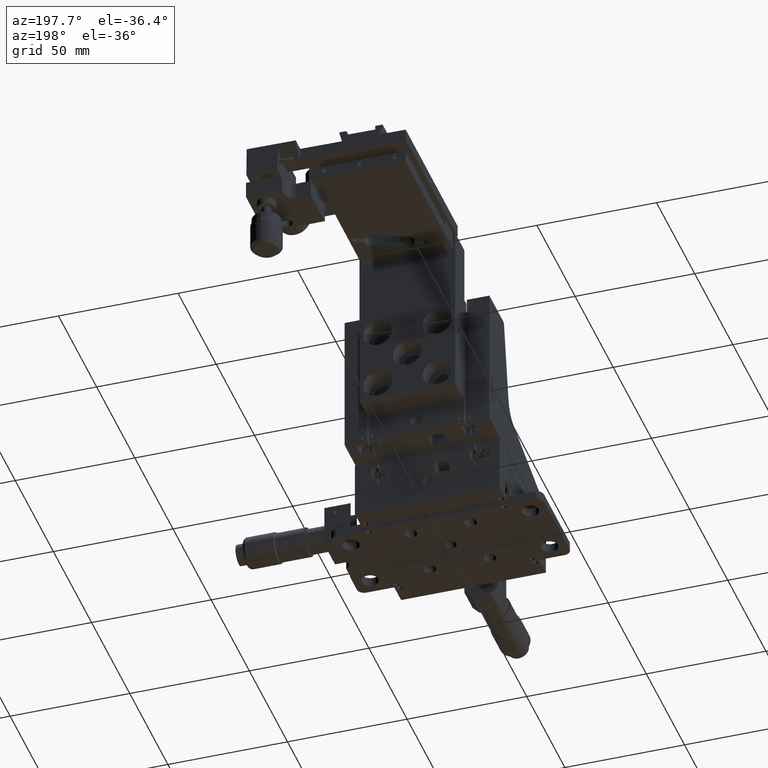
[diagram: clean part render]
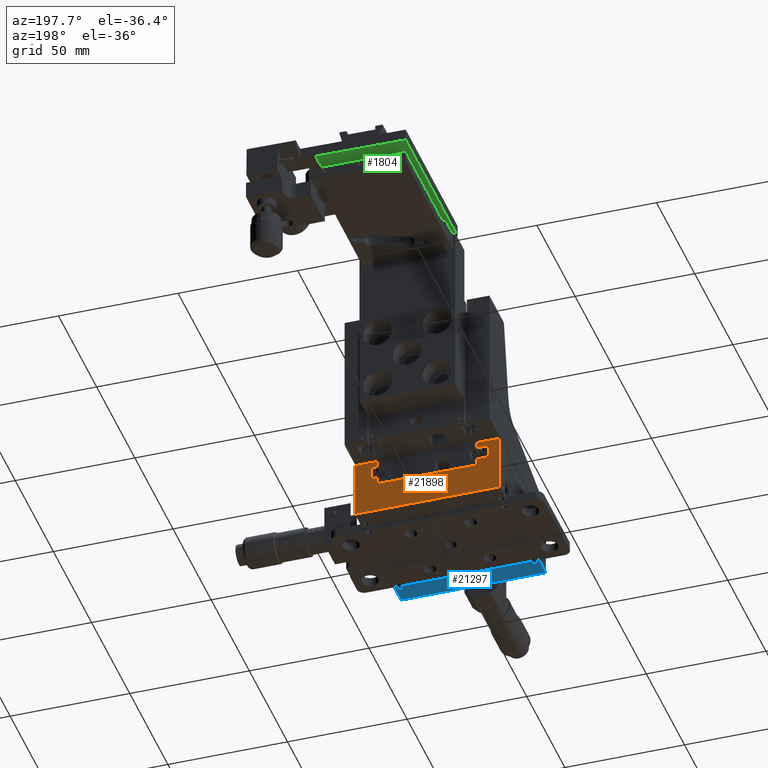
[diagram: same view with three faces highlighted in distinct colors, each labeled with its STEP entity id]
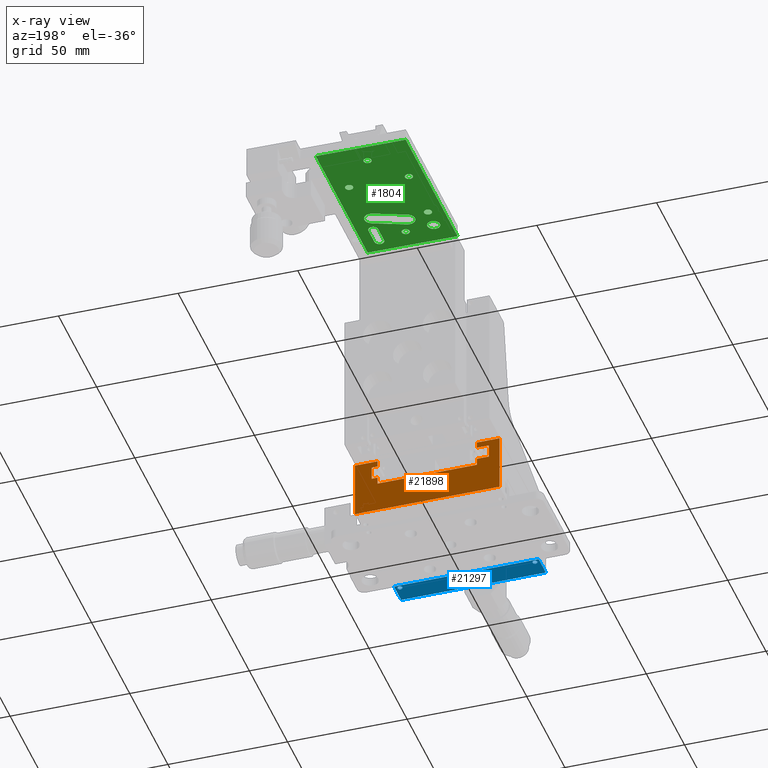
[diagram: x-ray of the same camera — body ghosted, the three highlighted faces saturated]
A machine part, auxiliary view with three faces highlighted in distinct colors.
The next image is the same camera in x-ray (body ghosted, the three faces saturated) — at least one of them is partly hidden behind the body in this view.
Their STEP definitions:

[orange] entity #21898 — the highlighted planar face has unit normal (-0, -1, 0).
#4605 = VECTOR ( 'NONE', #4657, 1000.000000000000000 ) ;
#4625 = CARTESIAN_POINT ( 'NONE',  ( -25.79999999999999700, 30.25000000000003600, 17.09999999999992700 ) ) ;
#4626 = LINE ( 'NONE', #4625, #4605 ) ;
#4657 = DIRECTION ( 'NONE',  ( 1.577021341797097800E-016, 2.602085213965194500E-015, 1.000000000000000000 ) ) ;
#4671 = CARTESIAN_POINT ( 'NONE',  ( -25.79999999999999700, 30.25000000000003600, 17.09999999999992700 ) ) ;
#4674 = CARTESIAN_POINT ( 'NONE',  ( -25.79999999999999700, 30.25000000000004600, 22.59999999999993000 ) ) ;
#4730 = CARTESIAN_POINT ( 'NONE',  ( -20.79999999999999700, 30.25000000000003600, 17.09999999999992700 ) ) ;
#4731 = LINE ( 'NONE', #4730, #4790 ) ;
#4775 = DIRECTION ( 'NONE',  ( -1.000000000000000000, 1.761832206359568800E-044, -4.584437533655909100E-059 ) ) ;
#4776 = VECTOR ( 'NONE', #4775, 1000.000000000000000 ) ;
#4777 = CARTESIAN_POINT ( 'NONE',  ( -20.79999999999999700, 30.25000000000003600, 17.09999999999992700 ) ) ;
#4778 = CARTESIAN_POINT ( 'NONE',  ( -20.79999999999999700, 30.25000000000003600, 17.09999999999992700 ) ) ;
#4785 = LINE ( 'NONE', #4777, #4776 ) ;
#4789 = DIRECTION ( 'NONE',  ( 0.0000000000000000000, 2.602085213965194500E-015, 1.000000000000000000 ) ) ;
#4790 = VECTOR ( 'NONE', #4789, 1000.000000000000000 ) ;
#4792 = CARTESIAN_POINT ( 'NONE',  ( 20.80000000000000400, 30.25000000000002800, 14.14999999999991700 ) ) ;
#4808 = CARTESIAN_POINT ( 'NONE',  ( 20.80000000000000400, 30.25000000000004600, 22.59999999999993000 ) ) ;
#4815 = DIRECTION ( 'NONE',  ( -1.000000000000000000, 3.255215125354182800E-031, 1.251002506714043500E-016 ) ) ;
#4816 = VECTOR ( 'NONE', #4815, 1000.000000000000000 ) ;
#4818 = CARTESIAN_POINT ( 'NONE',  ( -20.79999999999999700, 30.25000000000002800, 14.14999999999992200 ) ) ;
#4820 = CARTESIAN_POINT ( 'NONE',  ( -20.79999999999999700, 30.25000000000002800, 14.14999999999992200 ) ) ;
#4821 = LINE ( 'NONE', #4820, #4816 ) ;
#4887 = CARTESIAN_POINT ( 'NONE',  ( -30.24999999999999600, 30.25000000000005300, 25.14999999999992000 ) ) ;
#4921 = CARTESIAN_POINT ( 'NONE',  ( 20.80000000000000400, 30.25000000000003600, 17.09999999999992700 ) ) ;
#5023 = CARTESIAN_POINT ( 'NONE',  ( 23.20000000000000300, 30.25000000000003600, 17.09999999999992700 ) ) ;
#5024 = LINE ( 'NONE', #5023, #5069 ) ;
#5045 = CARTESIAN_POINT ( 'NONE',  ( 23.20000000000000300, 30.25000000000003600, 17.09999999999992700 ) ) ;
#5046 = CARTESIAN_POINT ( 'NONE',  ( 20.80000000000000400, 30.25000000000005300, 25.14999999999992000 ) ) ;
#5064 = DIRECTION ( 'NONE',  ( 0.0000000000000000000, -2.602085213965194500E-015, -1.000000000000000000 ) ) ;
#5065 = VECTOR ( 'NONE', #5064, 1000.000000000000000 ) ;
#5066 = CARTESIAN_POINT ( 'NONE',  ( 20.80000000000000400, 30.25000000000005300, 25.14999999999991700 ) ) ;
#5068 = DIRECTION ( 'NONE',  ( 0.0000000000000000000, -2.602085213965194500E-015, -1.000000000000000000 ) ) ;
#5069 = VECTOR ( 'NONE', #5068, 1000.000000000000000 ) ;
#5070 = LINE ( 'NONE', #5066, #5065 ) ;
#5075 = CARTESIAN_POINT ( 'NONE',  ( 20.80000000000000400, 30.25000000000003600, 17.09999999999992700 ) ) ;
#5076 = LINE ( 'NONE', #5075, #5130 ) ;
#5087 = CARTESIAN_POINT ( 'NONE',  ( 23.20000000000000300, 30.25000000000004600, 22.59999999999993000 ) ) ;
#5129 = DIRECTION ( 'NONE',  ( 0.0000000000000000000, -2.602085213965194500E-015, -1.000000000000000000 ) ) ;
#5130 = VECTOR ( 'NONE', #5129, 1000.000000000000000 ) ;
#5181 = DIRECTION ( 'NONE',  ( 1.000000000000000000, -1.761832206359568800E-044, 4.584437533655909100E-059 ) ) ;
#5182 = VECTOR ( 'NONE', #5181, 1000.000000000000000 ) ;
#5183 = CARTESIAN_POINT ( 'NONE',  ( 20.80000000000000400, 30.25000000000004600, 22.59999999999993000 ) ) ;
#5184 = LINE ( 'NONE', #5183, #5182 ) ;
#5201 = CARTESIAN_POINT ( 'NONE',  ( 30.25000000000000400, 30.25000000000005300, 25.14999999999992000 ) ) ;
#5234 = DIRECTION ( 'NONE',  ( -1.000000000000000000, 1.761832206359568800E-044, -4.584437533655909100E-059 ) ) ;
#5245 = VECTOR ( 'NONE', #5234, 1000.000000000000000 ) ;
#5246 = CARTESIAN_POINT ( 'NONE',  ( 30.25000000000000400, 30.25000000000005300, 25.14999999999992000 ) ) ;
#5247 = LINE ( 'NONE', #5246, #5245 ) ;
#5270 = DIRECTION ( 'NONE',  ( -1.000000000000000000, 1.761832206359568800E-044, -4.584437533655909100E-059 ) ) ;
#5271 = VECTOR ( 'NONE', #5270, 1000.000000000000000 ) ;
#5272 = CARTESIAN_POINT ( 'NONE',  ( 20.80000000000000400, 30.25000000000003600, 17.09999999999992700 ) ) ;
#5273 = LINE ( 'NONE', #5272, #5271 ) ;
#5314 = LINE ( 'NONE', #5379, #5378 ) ;
#5341 = CARTESIAN_POINT ( 'NONE',  ( -30.24999999999999600, 30.24999999999999300, 1.149999999999918400 ) ) ;
#5373 = CARTESIAN_POINT ( 'NONE',  ( 30.25000000000000400, 30.24999999999999300, 1.149999999999918400 ) ) ;
#5377 = DIRECTION ( 'NONE',  ( 0.0000000000000000000, 2.602085213965194500E-015, 1.000000000000000000 ) ) ;
#5378 = VECTOR ( 'NONE', #5377, 1000.000000000000000 ) ;
#5379 = CARTESIAN_POINT ( 'NONE',  ( 30.25000000000000400, 30.25000000000005300, 25.14999999999992000 ) ) ;
#5440 = DIRECTION ( 'NONE',  ( 0.0000000000000000000, 2.602085213965194500E-015, 1.000000000000000000 ) ) ;
#5441 = VECTOR ( 'NONE', #5440, 1000.000000000000000 ) ;
#5442 = CARTESIAN_POINT ( 'NONE',  ( -30.24999999999999600, 30.25000000000005300, 25.14999999999992000 ) ) ;
#5443 = LINE ( 'NONE', #5442, #5441 ) ;
#5512 = CARTESIAN_POINT ( 'NONE',  ( 3.469446951953614200E-015, 30.25000000000002100, 11.14999999999992000 ) ) ;
#5520 = DIRECTION ( 'NONE',  ( -1.000000000000000000, 1.761832206359568800E-044, -4.584437533655909100E-059 ) ) ;
#5521 = VECTOR ( 'NONE', #5520, 1000.000000000000000 ) ;
#5522 = CARTESIAN_POINT ( 'NONE',  ( 30.25000000000000400, 30.24999999999999300, 1.149999999999918400 ) ) ;
#5541 = LINE ( 'NONE', #5522, #5521 ) ;
#5544 = DIRECTION ( 'NONE',  ( 1.000000000000000000, 0.0000000000000000000, 0.0000000000000000000 ) ) ;
#5545 = DIRECTION ( 'NONE',  ( -3.523664412719137500E-044, 1.000000000000000000, -2.602085213965194500E-015 ) ) ;
#5546 = AXIS2_PLACEMENT_3D ( 'NONE', #5512, #5545, #5544 ) ;
#5554 = CIRCLE ( 'NONE', #5546, 2.000000000000005300 ) ;
#5589 = CARTESIAN_POINT ( 'NONE',  ( -20.79999999999999700, 30.25000000000005300, 25.14999999999992000 ) ) ;
#5606 = CARTESIAN_POINT ( 'NONE',  ( -20.79999999999999700, 30.25000000000004600, 22.59999999999993000 ) ) ;
#5607 = LINE ( 'NONE', #5606, #5653 ) ;
#5612 = CARTESIAN_POINT ( 'NONE',  ( 30.25000000000000400, 30.25000000000005300, 25.14999999999992000 ) ) ;
#5613 = FACE_BOUND ( 'NONE', #21837, .T. ) ;
#5628 = CARTESIAN_POINT ( 'NONE',  ( -20.79999999999999700, 30.25000000000004600, 22.59999999999993000 ) ) ;
#5638 = DIRECTION ( 'NONE',  ( 0.0000000000000000000, 2.602085213965194500E-015, 1.000000000000000000 ) ) ;
#5639 = VECTOR ( 'NONE', #5638, 1000.000000000000000 ) ;
#5640 = CARTESIAN_POINT ( 'NONE',  ( -20.79999999999999700, 30.25000000000005300, 25.14999999999992000 ) ) ;
#5641 = LINE ( 'NONE', #5640, #5639 ) ;
#5643 = DIRECTION ( 'NONE',  ( -1.000000000000000000, 1.761832206359568800E-044, -4.584437533655909100E-059 ) ) ;
#5644 = VECTOR ( 'NONE', #5643, 1000.000000000000000 ) ;
#5645 = CARTESIAN_POINT ( 'NONE',  ( 30.25000000000000400, 30.25000000000005300, 25.14999999999992000 ) ) ;
#5646 = LINE ( 'NONE', #5645, #5644 ) ;
#5648 = DIRECTION ( 'NONE',  ( -1.000000000000000000, 1.761832206359568800E-044, -4.584437533655909100E-059 ) ) ;
#5651 = PLANE ( 'NONE',  #5654 ) ;
#5652 = DIRECTION ( 'NONE',  ( 1.000000000000000000, -1.761832206359568800E-044, 4.584437533655909100E-059 ) ) ;
#5653 = VECTOR ( 'NONE', #5652, 1000.000000000000000 ) ;
#5654 = AXIS2_PLACEMENT_3D ( 'NONE', #5612, #5665, #5648 ) ;
#5656 = FACE_OUTER_BOUND ( 'NONE', #21841, .T. ) ;
#5665 = DIRECTION ( 'NONE',  ( -1.761832206359568800E-044, -1.000000000000000000, 2.602085213965194500E-015 ) ) ;
#12628 = VERTEX_POINT ( 'NONE', #20185 ) ;
#12640 = VERTEX_POINT ( 'NONE', #20180 ) ;
#12661 = EDGE_CURVE ( 'NONE', #12640, #12628, #20195, .T. ) ;
#20180 = CARTESIAN_POINT ( 'NONE',  ( -2.000000000000001800, 30.25000000000002100, 11.14999999999993100 ) ) ;
#20185 = CARTESIAN_POINT ( 'NONE',  ( 2.000000000000008900, 30.25000000000002100, 11.14999999999992000 ) ) ;
#20195 = CIRCLE ( 'NONE', #20242, 2.000000000000005300 ) ;
#20239 = DIRECTION ( 'NONE',  ( 1.000000000000000000, 0.0000000000000000000, 0.0000000000000000000 ) ) ;
#20240 = DIRECTION ( 'NONE',  ( -3.523664412719137500E-044, 1.000000000000000000, -2.602085213965194500E-015 ) ) ;
#20241 = CARTESIAN_POINT ( 'NONE',  ( 3.469446951953614200E-015, 30.25000000000002100, 11.14999999999992000 ) ) ;
#20242 = AXIS2_PLACEMENT_3D ( 'NONE', #20241, #20240, #20239 ) ;
#21257 = EDGE_CURVE ( 'NONE', #21293, #21291, #4626, .T. ) ;
#21291 = VERTEX_POINT ( 'NONE', #4674 ) ;
#21293 = VERTEX_POINT ( 'NONE', #4671 ) ;
#21323 = EDGE_CURVE ( 'NONE', #21348, #21340, #4731, .T. ) ;
#21339 = EDGE_CURVE ( 'NONE', #21340, #21293, #4785, .T. ) ;
#21340 = VERTEX_POINT ( 'NONE', #4778 ) ;
#21347 = EDGE_CURVE ( 'NONE', #21359, #21348, #4821, .T. ) ;
#21348 = VERTEX_POINT ( 'NONE', #4818 ) ;
#21359 = VERTEX_POINT ( 'NONE', #4792 ) ;
#21366 = VERTEX_POINT ( 'NONE', #4808 ) ;
#21443 = VERTEX_POINT ( 'NONE', #4921 ) ;
#21483 = EDGE_CURVE ( 'NONE', #21506, #21502, #5024, .T. ) ;
#21486 = EDGE_CURVE ( 'NONE', #21498, #21366, #5070, .T. ) ;
#21498 = VERTEX_POINT ( 'NONE', #5046 ) ;
#21502 = VERTEX_POINT ( 'NONE', #5045 ) ;
#21506 = VERTEX_POINT ( 'NONE', #5087 ) ;
#21517 = EDGE_CURVE ( 'NONE', #21443, #21359, #5076, .T. ) ;
#21558 = EDGE_CURVE ( 'NONE', #21366, #21506, #5184, .T. ) ;
#21593 = VERTEX_POINT ( 'NONE', #5201 ) ;
#21602 = EDGE_CURVE ( 'NONE', #21593, #21498, #5247, .T. ) ;
#21620 = EDGE_CURVE ( 'NONE', #21502, #21443, #5273, .T. ) ;
#21655 = VERTEX_POINT ( 'NONE', #5341 ) ;
#21664 = EDGE_CURVE ( 'NONE', #21670, #21593, #5314, .T. ) ;
#21670 = VERTEX_POINT ( 'NONE', #5373 ) ;
#21720 = VERTEX_POINT ( 'NONE', #4887 ) ;
#21724 = EDGE_CURVE ( 'NONE', #21655, #21720, #5443, .T. ) ;
#21801 = EDGE_CURVE ( 'NONE', #21670, #21655, #5541, .T. ) ;
#21828 = EDGE_CURVE ( 'NONE', #12628, #12640, #5554, .T. ) ;
#21830 = ORIENTED_EDGE ( 'NONE', *, *, #21257, .F. ) ;
#21837 = EDGE_LOOP ( 'NONE', ( #21899, #21901 ) ) ;
#21841 = EDGE_LOOP ( 'NONE', ( #21900, #21885, #21905, #21830, #21889, #21891, #21888, #21893, #21897, #21890, #21871, #21892, #21874, #21894, #21876, #21878 ) ) ;
#21844 = VERTEX_POINT ( 'NONE', #5589 ) ;
#21871 = ORIENTED_EDGE ( 'NONE', *, *, #21558, .F. ) ;
#21874 = ORIENTED_EDGE ( 'NONE', *, *, #21602, .F. ) ;
#21876 = ORIENTED_EDGE ( 'NONE', *, *, #21801, .T. ) ;
#21878 = ORIENTED_EDGE ( 'NONE', *, *, #21724, .T. ) ;
#21885 = ORIENTED_EDGE ( 'NONE', *, *, #21904, .F. ) ;
#21886 = EDGE_CURVE ( 'NONE', #21291, #21903, #5607, .T. ) ;
#21888 = ORIENTED_EDGE ( 'NONE', *, *, #21347, .F. ) ;
#21889 = ORIENTED_EDGE ( 'NONE', *, *, #21339, .F. ) ;
#21890 = ORIENTED_EDGE ( 'NONE', *, *, #21483, .F. ) ;
#21891 = ORIENTED_EDGE ( 'NONE', *, *, #21323, .F. ) ;
#21892 = ORIENTED_EDGE ( 'NONE', *, *, #21486, .F. ) ;
#21893 = ORIENTED_EDGE ( 'NONE', *, *, #21517, .F. ) ;
#21894 = ORIENTED_EDGE ( 'NONE', *, *, #21664, .F. ) ;
#21897 = ORIENTED_EDGE ( 'NONE', *, *, #21620, .F. ) ;
#21898 = ADVANCED_FACE ( 'NONE', ( #5613, #5656 ), #5651, .F. ) ;
#21899 = ORIENTED_EDGE ( 'NONE', *, *, #21828, .F. ) ;
#21900 = ORIENTED_EDGE ( 'NONE', *, *, #21902, .F. ) ;
#21901 = ORIENTED_EDGE ( 'NONE', *, *, #12661, .F. ) ;
#21902 = EDGE_CURVE ( 'NONE', #21844, #21720, #5646, .T. ) ;
#21903 = VERTEX_POINT ( 'NONE', #5628 ) ;
#21904 = EDGE_CURVE ( 'NONE', #21903, #21844, #5641, .T. ) ;
#21905 = ORIENTED_EDGE ( 'NONE', *, *, #21886, .F. ) ;

[blue] entity #21297 — the highlighted planar face has unit normal (0, 0, 1).
#4179 = CARTESIAN_POINT ( 'NONE',  ( -27.25000000000000400, -22.30000000000000400, 1.150000000000057200 ) ) ;
#4223 = CIRCLE ( 'NONE', #4282, 0.9999999999999974500 ) ;
#4226 = CARTESIAN_POINT ( 'NONE',  ( 30.25000000000000400, -20.80000000000000400, 1.150000000000046800 ) ) ;
#4230 = CARTESIAN_POINT ( 'NONE',  ( 28.25000000000000000, -22.30000000000000800, 1.150000000000057200 ) ) ;
#4255 = AXIS2_PLACEMENT_3D ( 'NONE', #4301, #4300, #4299 ) ;
#4261 = CARTESIAN_POINT ( 'NONE',  ( -29.25000000000000000, -22.30000000000000800, 1.150000000000057200 ) ) ;
#4264 = DIRECTION ( 'NONE',  ( 1.000000000000000000, 0.0000000000000000000, 0.0000000000000000000 ) ) ;
#4265 = DIRECTION ( 'NONE',  ( 0.0000000000000000000, -2.602085213965194500E-015, -1.000000000000000000 ) ) ;
#4266 = CARTESIAN_POINT ( 'NONE',  ( 29.25000000000000000, -22.30000000000000400, 1.150000000000057200 ) ) ;
#4272 = CARTESIAN_POINT ( 'NONE',  ( 27.25000000000000400, -22.30000000000000400, 1.150000000000057200 ) ) ;
#4282 = AXIS2_PLACEMENT_3D ( 'NONE', #4230, #4265, #4264 ) ;
#4291 = DIRECTION ( 'NONE',  ( -1.000000000000000000, 1.761832206359568800E-044, -4.584437533655909100E-059 ) ) ;
#4292 = VECTOR ( 'NONE', #4291, 1000.000000000000000 ) ;
#4294 = CARTESIAN_POINT ( 'NONE',  ( 30.25000000000000400, -20.80000000000000400, 1.150000000000046800 ) ) ;
#4295 = LINE ( 'NONE', #4294, #4292 ) ;
#4299 = DIRECTION ( 'NONE',  ( -1.000000000000000000, 0.0000000000000000000, 0.0000000000000000000 ) ) ;
#4300 = DIRECTION ( 'NONE',  ( 0.0000000000000000000, -2.602085213965194500E-015, -1.000000000000000000 ) ) ;
#4301 = CARTESIAN_POINT ( 'NONE',  ( -28.25000000000000000, -22.30000000000000800, 1.150000000000057200 ) ) ;
#4310 = CIRCLE ( 'NONE', #4255, 0.9999999999999974500 ) ;
#4331 = CARTESIAN_POINT ( 'NONE',  ( -30.24999999999999600, -20.80000000000000400, 1.150000000000046800 ) ) ;
#4614 = DIRECTION ( 'NONE',  ( -1.000000000000000000, 0.0000000000000000000, 0.0000000000000000000 ) ) ;
#4615 = DIRECTION ( 'NONE',  ( 0.0000000000000000000, -2.602085213965194500E-015, -1.000000000000000000 ) ) ;
#4616 = CARTESIAN_POINT ( 'NONE',  ( -28.25000000000000000, -22.30000000000000800, 1.150000000000057200 ) ) ;
#4622 = AXIS2_PLACEMENT_3D ( 'NONE', #4616, #4615, #4614 ) ;
#4624 = CIRCLE ( 'NONE', #4622, 0.9999999999999974500 ) ;
#4669 = PLANE ( 'NONE',  #4726 ) ;
#4681 = CIRCLE ( 'NONE', #4725, 0.9999999999999974500 ) ;
#4682 = DIRECTION ( 'NONE',  ( -3.523664412719137500E-044, 1.000000000000000000, -2.602085213965194500E-015 ) ) ;
#4683 = VECTOR ( 'NONE', #4682, 1000.000000000000000 ) ;
#4684 = CARTESIAN_POINT ( 'NONE',  ( -30.24999999999999600, -20.80000000000000400, 1.150000000000046800 ) ) ;
#4689 = FACE_OUTER_BOUND ( 'NONE', #21271, .T. ) ;
#4690 = FACE_BOUND ( 'NONE', #21269, .T. ) ;
#4692 = CARTESIAN_POINT ( 'NONE',  ( -30.24999999999999600, -30.25000000000000700, 1.150000000000071200 ) ) ;
#4693 = LINE ( 'NONE', #4684, #4683 ) ;
#4695 = CARTESIAN_POINT ( 'NONE',  ( 30.25000000000000400, -30.25000000000000700, 1.150000000000071200 ) ) ;
#4697 = DIRECTION ( 'NONE',  ( -1.000000000000000000, 1.761832206359568800E-044, -4.584437533655909100E-059 ) ) ;
#4698 = VECTOR ( 'NONE', #4697, 1000.000000000000000 ) ;
#4699 = CARTESIAN_POINT ( 'NONE',  ( 30.25000000000000400, -30.25000000000000700, 1.150000000000071200 ) ) ;
#4700 = LINE ( 'NONE', #4699, #4698 ) ;
#4711 = CARTESIAN_POINT ( 'NONE',  ( 30.25000000000000400, -20.80000000000000400, 1.150000000000046800 ) ) ;
#4712 = LINE ( 'NONE', #4711, #4755 ) ;
#4716 = DIRECTION ( 'NONE',  ( 1.000000000000000000, -1.761832206359568800E-044, 4.584437533655909100E-059 ) ) ;
#4717 = DIRECTION ( 'NONE',  ( 0.0000000000000000000, 2.602085213965194500E-015, 1.000000000000000000 ) ) ;
#4718 = CARTESIAN_POINT ( 'NONE',  ( 30.25000000000000400, -20.80000000000000400, 1.150000000000046800 ) ) ;
#4722 = DIRECTION ( 'NONE',  ( 1.000000000000000000, 0.0000000000000000000, 0.0000000000000000000 ) ) ;
#4723 = DIRECTION ( 'NONE',  ( 0.0000000000000000000, -2.602085213965194500E-015, -1.000000000000000000 ) ) ;
#4724 = CARTESIAN_POINT ( 'NONE',  ( 28.25000000000000000, -22.30000000000000800, 1.150000000000057200 ) ) ;
#4725 = AXIS2_PLACEMENT_3D ( 'NONE', #4724, #4723, #4722 ) ;
#4726 = AXIS2_PLACEMENT_3D ( 'NONE', #4718, #4717, #4716 ) ;
#4727 = FACE_BOUND ( 'NONE', #21294, .T. ) ;
#4754 = DIRECTION ( 'NONE',  ( -3.523664412719137500E-044, 1.000000000000000000, -2.602085213965194500E-015 ) ) ;
#4755 = VECTOR ( 'NONE', #4754, 1000.000000000000000 ) ;
#21006 = VERTEX_POINT ( 'NONE', #4179 ) ;
#21055 = VERTEX_POINT ( 'NONE', #4226 ) ;
#21061 = EDGE_CURVE ( 'NONE', #21064, #21065, #4223, .T. ) ;
#21064 = VERTEX_POINT ( 'NONE', #4266 ) ;
#21065 = VERTEX_POINT ( 'NONE', #4272 ) ;
#21072 = VERTEX_POINT ( 'NONE', #4261 ) ;
#21073 = EDGE_CURVE ( 'NONE', #21006, #21072, #4310, .T. ) ;
#21080 = EDGE_CURVE ( 'NONE', #21055, #21091, #4295, .T. ) ;
#21091 = VERTEX_POINT ( 'NONE', #4331 ) ;
#21243 = EDGE_CURVE ( 'NONE', #21072, #21006, #4624, .T. ) ;
#21266 = ORIENTED_EDGE ( 'NONE', *, *, #21061, .F. ) ;
#21269 = EDGE_LOOP ( 'NONE', ( #21273, #21266 ) ) ;
#21271 = EDGE_LOOP ( 'NONE', ( #21283, #21302, #21312, #21303 ) ) ;
#21273 = ORIENTED_EDGE ( 'NONE', *, *, #21292, .F. ) ;
#21275 = VERTEX_POINT ( 'NONE', #4695 ) ;
#21279 = EDGE_CURVE ( 'NONE', #21287, #21091, #4693, .T. ) ;
#21283 = ORIENTED_EDGE ( 'NONE', *, *, #21279, .T. ) ;
#21286 = ORIENTED_EDGE ( 'NONE', *, *, #21073, .F. ) ;
#21287 = VERTEX_POINT ( 'NONE', #4692 ) ;
#21292 = EDGE_CURVE ( 'NONE', #21065, #21064, #4681, .T. ) ;
#21294 = EDGE_LOOP ( 'NONE', ( #21296, #21286 ) ) ;
#21296 = ORIENTED_EDGE ( 'NONE', *, *, #21243, .F. ) ;
#21297 = ADVANCED_FACE ( 'NONE', ( #4690, #4727, #4689 ), #4669, .F. ) ;
#21302 = ORIENTED_EDGE ( 'NONE', *, *, #21080, .F. ) ;
#21303 = ORIENTED_EDGE ( 'NONE', *, *, #21308, .T. ) ;
#21308 = EDGE_CURVE ( 'NONE', #21275, #21287, #4700, .T. ) ;
#21311 = EDGE_CURVE ( 'NONE', #21275, #21055, #4712, .T. ) ;
#21312 = ORIENTED_EDGE ( 'NONE', *, *, #21311, .F. ) ;

[green] entity #1804 — the highlighted planar face has unit normal (0.0083, 0, -1).
#600 = EDGE_CURVE ( 'NONE', #12278, #12301, #13604, .T. ) ;
#1465 = EDGE_CURVE ( 'NONE', #1522, #1523, #15382, .T. ) ;
#1471 = VERTEX_POINT ( 'NONE', #15419 ) ;
#1474 = VERTEX_POINT ( 'NONE', #15404 ) ;
#1492 = EDGE_CURVE ( 'NONE', #1474, #1471, #15491, .T. ) ;
#1522 = VERTEX_POINT ( 'NONE', #15552 ) ;
#1523 = VERTEX_POINT ( 'NONE', #15546 ) ;
#1541 = VERTEX_POINT ( 'NONE', #15530 ) ;
#1551 = EDGE_CURVE ( 'NONE', #1564, #1565, #15586, .T. ) ;
#1552 = VERTEX_POINT ( 'NONE', #15580 ) ;
#1560 = VERTEX_POINT ( 'NONE', #15560 ) ;
#1561 = EDGE_CURVE ( 'NONE', #1552, #1560, #15566, .T. ) ;
#1564 = VERTEX_POINT ( 'NONE', #15555 ) ;
#1565 = VERTEX_POINT ( 'NONE', #15559 ) ;
#1569 = VERTEX_POINT ( 'NONE', #15558 ) ;
#1572 = VERTEX_POINT ( 'NONE', #15595 ) ;
#1574 = EDGE_CURVE ( 'NONE', #1569, #1572, #15594, .T. ) ;
#1604 = VERTEX_POINT ( 'NONE', #15666 ) ;
#1609 = EDGE_CURVE ( 'NONE', #1541, #1604, #15655, .T. ) ;
#1623 = VERTEX_POINT ( 'NONE', #15686 ) ;
#1630 = EDGE_CURVE ( 'NONE', #1572, #1569, #15682, .T. ) ;
#1642 = EDGE_CURVE ( 'NONE', #1560, #1552, #15737, .T. ) ;
#1645 = EDGE_CURVE ( 'NONE', #1604, #1541, #15759, .T. ) ;
#1656 = EDGE_CURVE ( 'NONE', #1565, #1564, #15748, .T. ) ;
#1677 = EDGE_CURVE ( 'NONE', #1623, #1689, #15812, .T. ) ;
#1679 = VERTEX_POINT ( 'NONE', #15813 ) ;
#1681 = EDGE_CURVE ( 'NONE', #1694, #1679, #15820, .T. ) ;
#1686 = EDGE_CURVE ( 'NONE', #1679, #1623, #15861, .T. ) ;
#1687 = EDGE_CURVE ( 'NONE', #1689, #1694, #15854, .T. ) ;
#1689 = VERTEX_POINT ( 'NONE', #15849 ) ;
#1694 = VERTEX_POINT ( 'NONE', #15846 ) ;
#1700 = EDGE_CURVE ( 'NONE', #12301, #12278, #15832, .T. ) ;
#1717 = EDGE_CURVE ( 'NONE', #1729, #1522, #15879, .T. ) ;
#1729 = VERTEX_POINT ( 'NONE', #15869 ) ;
#1742 = VERTEX_POINT ( 'NONE', #15912 ) ;
#1744 = VERTEX_POINT ( 'NONE', #15911 ) ;
#1745 = EDGE_CURVE ( 'NONE', #1744, #1754, #15903, .T. ) ;
#1754 = VERTEX_POINT ( 'NONE', #15958 ) ;
#1757 = ORIENTED_EDGE ( 'NONE', *, *, #1745, .F. ) ;
#1771 = EDGE_CURVE ( 'NONE', #1523, #1744, #15933, .T. ) ;
#1783 = ORIENTED_EDGE ( 'NONE', *, *, #1492, .F. ) ;
#1784 = VERTEX_POINT ( 'NONE', #16025 ) ;
#1785 = VERTEX_POINT ( 'NONE', #16020 ) ;
#1786 = EDGE_LOOP ( 'NONE', ( #1858, #1841, #1845, #1848 ) ) ;
#1787 = EDGE_CURVE ( 'NONE', #1784, #1785, #16014, .T. ) ;
#1788 = ORIENTED_EDGE ( 'NONE', *, *, #1847, .T. ) ;
#1789 = ORIENTED_EDGE ( 'NONE', *, *, #1687, .T. ) ;
#1790 = ORIENTED_EDGE ( 'NONE', *, *, #1677, .T. ) ;
#1791 = ORIENTED_EDGE ( 'NONE', *, *, #600, .F. ) ;
#1792 = ORIENTED_EDGE ( 'NONE', *, *, #1700, .F. ) ;
#1793 = ORIENTED_EDGE ( 'NONE', *, *, #1681, .T. ) ;
#1794 = ORIENTED_EDGE ( 'NONE', *, *, #1630, .F. ) ;
#1795 = ORIENTED_EDGE ( 'NONE', *, *, #1561, .F. ) ;
#1796 = EDGE_LOOP ( 'NONE', ( #1794, #1799 ) ) ;
#1797 = VERTEX_POINT ( 'NONE', #15963 ) ;
#1798 = ORIENTED_EDGE ( 'NONE', *, *, #1642, .F. ) ;
#1799 = ORIENTED_EDGE ( 'NONE', *, *, #1574, .F. ) ;
#1800 = ORIENTED_EDGE ( 'NONE', *, *, #1656, .F. ) ;
#1803 = ORIENTED_EDGE ( 'NONE', *, *, #1771, .F. ) ;
#1804 = ADVANCED_FACE ( 'NONE', ( #16005, #16003, #15998, #16006, #16016, #16022, #15997, #15996, #15995, #15993 ), #15990, .T. ) ;
#1805 = ORIENTED_EDGE ( 'NONE', *, *, #1465, .F. ) ;
#1806 = EDGE_LOOP ( 'NONE', ( #1792, #1791 ) ) ;
#1807 = EDGE_LOOP ( 'NONE', ( #1798, #1795 ) ) ;
#1808 = EDGE_CURVE ( 'NONE', #1754, #1729, #15992, .T. ) ;
#1809 = ORIENTED_EDGE ( 'NONE', *, *, #1717, .F. ) ;
#1810 = EDGE_LOOP ( 'NONE', ( #1811, #1790, #1789, #1793 ) ) ;
#1811 = ORIENTED_EDGE ( 'NONE', *, *, #1686, .T. ) ;
#1814 = ORIENTED_EDGE ( 'NONE', *, *, #1808, .F. ) ;
#1817 = ORIENTED_EDGE ( 'NONE', *, *, #1609, .F. ) ;
#1819 = EDGE_LOOP ( 'NONE', ( #1757, #1803, #1805, #1809, #1814 ) ) ;
#1821 = EDGE_LOOP ( 'NONE', ( #1857, #1783 ) ) ;
#1837 = ORIENTED_EDGE ( 'NONE', *, *, #1850, .T. ) ;
#1841 = ORIENTED_EDGE ( 'NONE', *, *, #1842, .F. ) ;
#1842 = EDGE_CURVE ( 'NONE', #1742, #1784, #16029, .T. ) ;
#1843 = EDGE_CURVE ( 'NONE', #1860, #1742, #16031, .T. ) ;
#1844 = VERTEX_POINT ( 'NONE', #16030 ) ;
#1845 = ORIENTED_EDGE ( 'NONE', *, *, #1843, .F. ) ;
#1846 = EDGE_CURVE ( 'NONE', #1785, #1860, #16088, .T. ) ;
#1847 = EDGE_CURVE ( 'NONE', #1844, #1797, #16082, .T. ) ;
#1848 = ORIENTED_EDGE ( 'NONE', *, *, #1846, .F. ) ;
#1850 = EDGE_CURVE ( 'NONE', #1797, #1844, #16081, .T. ) ;
#1853 = EDGE_LOOP ( 'NONE', ( #1800, #1856 ) ) ;
#1854 = ORIENTED_EDGE ( 'NONE', *, *, #1645, .F. ) ;
#1855 = EDGE_LOOP ( 'NONE', ( #1854, #1817 ) ) ;
#1856 = ORIENTED_EDGE ( 'NONE', *, *, #1551, .F. ) ;
#1857 = ORIENTED_EDGE ( 'NONE', *, *, #1861, .F. ) ;
#1858 = ORIENTED_EDGE ( 'NONE', *, *, #1787, .F. ) ;
#1859 = EDGE_LOOP ( 'NONE', ( #1788, #1837 ) ) ;
#1860 = VERTEX_POINT ( 'NONE', #16086 ) ;
#1861 = EDGE_CURVE ( 'NONE', #1471, #1474, #16068, .T. ) ;
#12278 = VERTEX_POINT ( 'NONE', #19750 ) ;
#12301 = VERTEX_POINT ( 'NONE', #19749 ) ;
#13596 = DIRECTION ( 'NONE',  ( -0.9999653012679379200, 0.0000000000000000000, -0.008330441772331680400 ) ) ;
#13597 = DIRECTION ( 'NONE',  ( 0.008330441772328889300, 1.729666205837794500E-016, -0.9999653012679379200 ) ) ;
#13598 = AXIS2_PLACEMENT_3D ( 'NONE', #13603, #13597, #13596 ) ;
#13603 = CARTESIAN_POINT ( 'NONE',  ( -0.01207900326601100800, 58.54999999999888900, 114.2499167230420900 ) ) ;
#13604 = CIRCLE ( 'NONE', #13598, 1.649999999999999000 ) ;
#15382 = CIRCLE ( 'NONE', #15425, 3.250000000000001800 ) ;
#15404 = CARTESIAN_POINT ( 'NONE',  ( 1.637863743826085000, 108.5499999999989000, 114.2636619519664400 ) ) ;
#15419 = CARTESIAN_POINT ( 'NONE',  ( -1.662021750358107200, 108.5499999999989000, 114.2361714941177400 ) ) ;
#15422 = DIRECTION ( 'NONE',  ( -0.9999653012679380300, 0.0000000000000000000, -0.008330441772328953500 ) ) ;
#15423 = DIRECTION ( 'NONE',  ( 0.008330441772328889300, 1.729666205837794500E-016, -0.9999653012679379200 ) ) ;
#15424 = CARTESIAN_POINT ( 'NONE',  ( 10.06541965367584100, 70.94414100327857400, 114.3338696518746500 ) ) ;
#15425 = AXIS2_PLACEMENT_3D ( 'NONE', #15424, #15423, #15422 ) ;
#15436 = CARTESIAN_POINT ( 'NONE',  ( -0.01207900326601110300, 108.5499999999989000, 114.2499167230420900 ) ) ;
#15479 = DIRECTION ( 'NONE',  ( -0.9999653012679379200, 0.0000000000000000000, -0.008330441772331680400 ) ) ;
#15480 = DIRECTION ( 'NONE',  ( 0.008330441772328889300, 1.729666205837794500E-016, -0.9999653012679379200 ) ) ;
#15481 = AXIS2_PLACEMENT_3D ( 'NONE', #15436, #15480, #15479 ) ;
#15491 = CIRCLE ( 'NONE', #15481, 1.649999999999999000 ) ;
#15530 = CARTESIAN_POINT ( 'NONE',  ( -10.86170252202313900, 93.54999999999888900, 114.1595314298123300 ) ) ;
#15531 = AXIS2_PLACEMENT_3D ( 'NONE', #15579, #15578, #15577 ) ;
#15546 = CARTESIAN_POINT ( 'NONE',  ( 13.31530688279664300, 70.94414100327857400, 114.3609435876347200 ) ) ;
#15552 = CARTESIAN_POINT ( 'NONE',  ( 8.953892757779682300, 73.99814202083278800, 114.3246098204856100 ) ) ;
#15554 = CARTESIAN_POINT ( 'NONE',  ( -0.01207900326600758500, 83.54999999999888900, 114.2499167230420900 ) ) ;
#15555 = CARTESIAN_POINT ( 'NONE',  ( 14.13743000967531000, 93.54999999999888900, 114.3677924741205600 ) ) ;
#15558 = CARTESIAN_POINT ( 'NONE',  ( -10.86170252202313900, 68.54999999999888900, 114.1595314298123300 ) ) ;
#15559 = CARTESIAN_POINT ( 'NONE',  ( 10.83754451549111800, 93.54999999999888900, 114.3403020162718600 ) ) ;
#15560 = CARTESIAN_POINT ( 'NONE',  ( -1.662021750358103600, 83.54999999999888900, 114.2361714941177400 ) ) ;
#15566 = CIRCLE ( 'NONE', #15615, 1.649999999999999000 ) ;
#15577 = DIRECTION ( 'NONE',  ( -0.9999653012679378100, 0.0000000000000000000, -0.008330441772331680400 ) ) ;
#15578 = DIRECTION ( 'NONE',  ( 0.008330441772328889300, 1.729666205837794500E-016, -0.9999653012679379200 ) ) ;
#15579 = CARTESIAN_POINT ( 'NONE',  ( 12.48748726258321400, 93.54999999999888900, 114.3540472451962100 ) ) ;
#15580 = CARTESIAN_POINT ( 'NONE',  ( 1.637863743826088300, 83.54999999999888900, 114.2636619519664400 ) ) ;
#15586 = CIRCLE ( 'NONE', #15531, 1.649999999999998800 ) ;
#15588 = DIRECTION ( 'NONE',  ( -0.9999653012679378100, 0.0000000000000000000, -0.008330441772331680400 ) ) ;
#15589 = DIRECTION ( 'NONE',  ( 0.008330441772328889300, 1.729666205837794500E-016, -0.9999653012679379200 ) ) ;
#15590 = CARTESIAN_POINT ( 'NONE',  ( -12.51164526911523500, 68.54999999999888900, 114.1457862008879800 ) ) ;
#15594 = CIRCLE ( 'NONE', #15600, 1.649999999999998800 ) ;
#15595 = CARTESIAN_POINT ( 'NONE',  ( -14.16158801620733200, 68.54999999999888900, 114.1320409719636300 ) ) ;
#15600 = AXIS2_PLACEMENT_3D ( 'NONE', #15590, #15589, #15588 ) ;
#15613 = DIRECTION ( 'NONE',  ( -0.9999653012679379200, 0.0000000000000000000, -0.008330441772331680400 ) ) ;
#15614 = DIRECTION ( 'NONE',  ( 0.008330441772328889300, 1.729666205837794500E-016, -0.9999653012679379200 ) ) ;
#15615 = AXIS2_PLACEMENT_3D ( 'NONE', #15554, #15614, #15613 ) ;
#15655 = CIRCLE ( 'NONE', #15693, 1.649999999999998800 ) ;
#15666 = CARTESIAN_POINT ( 'NONE',  ( -14.16158801620733200, 93.54999999999888900, 114.1320409719636300 ) ) ;
#15682 = CIRCLE ( 'NONE', #15721, 1.649999999999998800 ) ;
#15686 = CARTESIAN_POINT ( 'NONE',  ( 18.78726866057121800, 49.54999999999888900, 114.4065290283618700 ) ) ;
#15688 = DIRECTION ( 'NONE',  ( -0.9999653012679378100, 0.0000000000000000000, -0.008330441772331680400 ) ) ;
#15689 = DIRECTION ( 'NONE',  ( 0.008330441772328889300, 1.729666205837794500E-016, -0.9999653012679379200 ) ) ;
#15693 = AXIS2_PLACEMENT_3D ( 'NONE', #15698, #15689, #15688 ) ;
#15698 = CARTESIAN_POINT ( 'NONE',  ( -12.51164526911523500, 93.54999999999888900, 114.1457862008879800 ) ) ;
#15718 = DIRECTION ( 'NONE',  ( -0.9999653012679378100, 0.0000000000000000000, -0.008330441772331680400 ) ) ;
#15719 = DIRECTION ( 'NONE',  ( 0.008330441772328889300, 1.729666205837794500E-016, -0.9999653012679379200 ) ) ;
#15720 = CARTESIAN_POINT ( 'NONE',  ( -12.51164526911523500, 68.54999999999888900, 114.1457862008879800 ) ) ;
#15721 = AXIS2_PLACEMENT_3D ( 'NONE', #15720, #15719, #15718 ) ;
#15737 = CIRCLE ( 'NONE', #15763, 1.649999999999999000 ) ;
#15748 = CIRCLE ( 'NONE', #15788, 1.649999999999998800 ) ;
#15756 = DIRECTION ( 'NONE',  ( -0.9999653012679378100, 0.0000000000000000000, -0.008330441772331680400 ) ) ;
#15757 = DIRECTION ( 'NONE',  ( 0.008330441772328889300, 1.729666205837794500E-016, -0.9999653012679379200 ) ) ;
#15758 = AXIS2_PLACEMENT_3D ( 'NONE', #15768, #15757, #15756 ) ;
#15759 = CIRCLE ( 'NONE', #15758, 1.649999999999998800 ) ;
#15762 = DIRECTION ( 'NONE',  ( -0.9999653012679379200, 0.0000000000000000000, -0.008330441772331680400 ) ) ;
#15763 = AXIS2_PLACEMENT_3D ( 'NONE', #15765, #15767, #15762 ) ;
#15765 = CARTESIAN_POINT ( 'NONE',  ( -0.01207900326600758500, 83.54999999999888900, 114.2499167230420900 ) ) ;
#15767 = DIRECTION ( 'NONE',  ( 0.008330441772328889300, 1.729666205837794500E-016, -0.9999653012679379200 ) ) ;
#15768 = CARTESIAN_POINT ( 'NONE',  ( -12.51164526911523500, 93.54999999999888900, 114.1457862008879800 ) ) ;
#15787 = DIRECTION ( 'NONE',  ( -0.9999653012679378100, 0.0000000000000000000, -0.008330441772331680400 ) ) ;
#15788 = AXIS2_PLACEMENT_3D ( 'NONE', #15791, #15794, #15787 ) ;
#15791 = CARTESIAN_POINT ( 'NONE',  ( 12.48748726258321400, 93.54999999999888900, 114.3540472451962100 ) ) ;
#15794 = DIRECTION ( 'NONE',  ( 0.008330441772328889300, 1.729666205837794500E-016, -0.9999653012679379200 ) ) ;
#15805 = DIRECTION ( 'NONE',  ( 0.9999653012679379200, 5.293402146018202900E-019, 0.008330441772328889300 ) ) ;
#15806 = VECTOR ( 'NONE', #15805, 1000.000000000000000 ) ;
#15809 = DIRECTION ( 'NONE',  ( -0.9999653012679379200, -5.293402146018202900E-019, -0.008330441772328889300 ) ) ;
#15810 = VECTOR ( 'NONE', #15809, 1000.000000000000000 ) ;
#15811 = CARTESIAN_POINT ( 'NONE',  ( 18.78726866057121800, 49.54999999999888900, 114.4065290283618700 ) ) ;
#15812 = LINE ( 'NONE', #15811, #15810 ) ;
#15813 = CARTESIAN_POINT ( 'NONE',  ( 18.78726866057122500, 117.5499999999988900, 114.4065290283618700 ) ) ;
#15819 = CARTESIAN_POINT ( 'NONE',  ( 18.78726866057122500, 117.5499999999988900, 114.4065290283618700 ) ) ;
#15820 = LINE ( 'NONE', #15819, #15806 ) ;
#15829 = DIRECTION ( 'NONE',  ( -0.9999653012679379200, 0.0000000000000000000, -0.008330441772331680400 ) ) ;
#15830 = DIRECTION ( 'NONE',  ( 0.008330441772328889300, 1.729666205837794500E-016, -0.9999653012679379200 ) ) ;
#15831 = AXIS2_PLACEMENT_3D ( 'NONE', #15852, #15830, #15829 ) ;
#15832 = CIRCLE ( 'NONE', #15831, 1.649999999999999000 ) ;
#15846 = CARTESIAN_POINT ( 'NONE',  ( -18.81142666710324100, 117.5499999999988900, 114.0933044177223200 ) ) ;
#15849 = CARTESIAN_POINT ( 'NONE',  ( -18.81142666710324800, 49.54999999999888900, 114.0933044177223100 ) ) ;
#15850 = DIRECTION ( 'NONE',  ( 1.000688064545446800E-016, 1.000000000000000000, 1.738062688063274900E-016 ) ) ;
#15851 = VECTOR ( 'NONE', #15850, 1000.000000000000000 ) ;
#15852 = CARTESIAN_POINT ( 'NONE',  ( -0.01207900326601100800, 58.54999999999888900, 114.2499167230420900 ) ) ;
#15853 = CARTESIAN_POINT ( 'NONE',  ( -18.81142666710324100, 117.5499999999988900, 114.0933044177223200 ) ) ;
#15854 = LINE ( 'NONE', #15853, #15851 ) ;
#15855 = DIRECTION ( 'NONE',  ( -1.000688064545446800E-016, -1.000000000000000000, -1.738062688063274900E-016 ) ) ;
#15856 = VECTOR ( 'NONE', #15855, 1000.000000000000000 ) ;
#15860 = CARTESIAN_POINT ( 'NONE',  ( 18.78726866057122500, 117.5499999999988900, 114.4065290283618700 ) ) ;
#15861 = LINE ( 'NONE', #15860, #15856 ) ;
#15869 = CARTESIAN_POINT ( 'NONE',  ( -4.201347447228458000, 69.20986001427340300, 114.2150170552267800 ) ) ;
#15876 = DIRECTION ( 'NONE',  ( 0.9396600146434387300, 0.3420201433256696000, 0.007828054661344197400 ) ) ;
#15877 = VECTOR ( 'NONE', #15876, 1000.000000000000200 ) ;
#15878 = CARTESIAN_POINT ( 'NONE',  ( 8.953892757779682300, 73.99814202083278800, 114.3246098204856100 ) ) ;
#15879 = LINE ( 'NONE', #15878, #15877 ) ;
#15902 = CARTESIAN_POINT ( 'NONE',  ( 11.17694654957200100, 67.89013998572437500, 114.3431294832637000 ) ) ;
#15903 = LINE ( 'NONE', #15902, #15957 ) ;
#15911 = CARTESIAN_POINT ( 'NONE',  ( 11.17694654957200100, 67.89013998572437500, 114.3431294832637000 ) ) ;
#15912 = CARTESIAN_POINT ( 'NONE',  ( 9.987574009413377100, 55.54999999999888900, 114.3332211407653900 ) ) ;
#15933 = CIRCLE ( 'NONE', #15980, 3.250000000000001800 ) ;
#15956 = DIRECTION ( 'NONE',  ( -0.9396600146434386200, -0.3420201433256696000, -0.007828054661344195600 ) ) ;
#15957 = VECTOR ( 'NONE', #15956, 1000.000000000000200 ) ;
#15958 = CARTESIAN_POINT ( 'NONE',  ( -1.978293655436143200, 63.10185797916499700, 114.2335367180048700 ) ) ;
#15960 = AXIS2_PLACEMENT_3D ( 'NONE', #16011, #16002, #16001 ) ;
#15963 = CARTESIAN_POINT ( 'NONE',  ( -9.358454852336908700, 59.54999999999888900, 114.1720545815315100 ) ) ;
#15977 = DIRECTION ( 'NONE',  ( -0.9999653012679380300, 0.0000000000000000000, -0.008330441772328953500 ) ) ;
#15978 = DIRECTION ( 'NONE',  ( 0.008330441772328889300, 1.729666205837794500E-016, -0.9999653012679379200 ) ) ;
#15979 = CARTESIAN_POINT ( 'NONE',  ( 10.06541965367584100, 70.94414100327857400, 114.3338696518746500 ) ) ;
#15980 = AXIS2_PLACEMENT_3D ( 'NONE', #15979, #15978, #15977 ) ;
#15990 = PLANE ( 'NONE',  #15960 ) ;
#15991 = CARTESIAN_POINT ( 'NONE',  ( -3.089820551332298500, 66.15585899671920300, 114.2242768866158400 ) ) ;
#15992 = CIRCLE ( 'NONE', #16055, 3.250000000000001800 ) ;
#15993 = FACE_BOUND ( 'NONE', #1859, .T. ) ;
#15994 = CARTESIAN_POINT ( 'NONE',  ( 11.98750461194925200, 55.54999999999888900, 114.3498820243100300 ) ) ;
#15995 = FACE_BOUND ( 'NONE', #1786, .T. ) ;
#15996 = FACE_BOUND ( 'NONE', #1821, .T. ) ;
#15997 = FACE_BOUND ( 'NONE', #1855, .T. ) ;
#15998 = FACE_BOUND ( 'NONE', #1806, .T. ) ;
#16001 = DIRECTION ( 'NONE',  ( -0.9999653012679379200, -5.293402146018202900E-019, -0.008330441772328889300 ) ) ;
#16002 = DIRECTION ( 'NONE',  ( 0.008330441772328889300, 1.729666205837794700E-016, -0.9999653012679379200 ) ) ;
#16003 = FACE_OUTER_BOUND ( 'NONE', #1810, .T. ) ;
#16005 = FACE_BOUND ( 'NONE', #1819, .T. ) ;
#16006 = FACE_BOUND ( 'NONE', #1796, .T. ) ;
#16008 = DIRECTION ( 'NONE',  ( -0.9999653012679379200, 0.0000000000000000000, -0.008330441772327890100 ) ) ;
#16009 = DIRECTION ( 'NONE',  ( 0.008330441772328889300, 1.729666205837794500E-016, -0.9999653012679379200 ) ) ;
#16010 = CARTESIAN_POINT ( 'NONE',  ( 11.98750461194925200, 63.54999999999888900, 114.3498820243100300 ) ) ;
#16011 = CARTESIAN_POINT ( 'NONE',  ( 18.78726866057121800, 49.54999999999888900, 114.4065290283618700 ) ) ;
#16014 = CIRCLE ( 'NONE', #16021, 2.000000000000000000 ) ;
#16016 = FACE_BOUND ( 'NONE', #1807, .T. ) ;
#16020 = CARTESIAN_POINT ( 'NONE',  ( 13.98743521448512400, 63.54999999999888900, 114.3665429078546900 ) ) ;
#16021 = AXIS2_PLACEMENT_3D ( 'NONE', #16010, #16009, #16008 ) ;
#16022 = FACE_BOUND ( 'NONE', #1853, .T. ) ;
#16025 = CARTESIAN_POINT ( 'NONE',  ( 9.987574009413373600, 63.54999999999888900, 114.3332211407653900 ) ) ;
#16028 = CARTESIAN_POINT ( 'NONE',  ( 9.987574009413373600, 63.54999999999888900, 114.3332211407653900 ) ) ;
#16029 = LINE ( 'NONE', #16028, #16091 ) ;
#16030 = CARTESIAN_POINT ( 'NONE',  ( -14.66487038462562600, 59.54999999999888900, 114.1278482620167700 ) ) ;
#16031 = CIRCLE ( 'NONE', #16046, 2.000000000000000000 ) ;
#16033 = CARTESIAN_POINT ( 'NONE',  ( -12.01166261848126700, 59.54999999999888900, 114.1499514217741500 ) ) ;
#16046 = AXIS2_PLACEMENT_3D ( 'NONE', #15994, #16085, #16084 ) ;
#16047 = DIRECTION ( 'NONE',  ( -0.9999653012679380300, 0.0000000000000000000, -0.008330441772328953500 ) ) ;
#16048 = DIRECTION ( 'NONE',  ( 0.008330441772328889300, 1.729666205837794500E-016, -0.9999653012679379200 ) ) ;
#16055 = AXIS2_PLACEMENT_3D ( 'NONE', #15991, #16048, #16047 ) ;
#16061 = DIRECTION ( 'NONE',  ( -0.9999653012679379200, 0.0000000000000000000, -0.008330441772331680400 ) ) ;
#16062 = DIRECTION ( 'NONE',  ( 0.008330441772328889300, 1.729666205837794500E-016, -0.9999653012679379200 ) ) ;
#16063 = CARTESIAN_POINT ( 'NONE',  ( -0.01207900326601110300, 108.5499999999989000, 114.2499167230420900 ) ) ;
#16064 = AXIS2_PLACEMENT_3D ( 'NONE', #16063, #16062, #16061 ) ;
#16068 = CIRCLE ( 'NONE', #16064, 1.649999999999999000 ) ;
#16069 = DIRECTION ( 'NONE',  ( -0.9999653012679380300, 0.0000000000000000000, -0.008330441772327007100 ) ) ;
#16070 = DIRECTION ( 'NONE',  ( -0.008330441772328889300, -1.729666205837794500E-016, 0.9999653012679379200 ) ) ;
#16071 = AXIS2_PLACEMENT_3D ( 'NONE', #16033, #16070, #16069 ) ;
#16075 = DIRECTION ( 'NONE',  ( -0.9999653012679380300, 0.0000000000000000000, -0.008330441772327007100 ) ) ;
#16076 = DIRECTION ( 'NONE',  ( -0.008330441772328889300, -1.729666205837794500E-016, 0.9999653012679379200 ) ) ;
#16078 = DIRECTION ( 'NONE',  ( 1.970210208497221700E-018, -1.000000000000000000, -1.729562092235206300E-016 ) ) ;
#16079 = VECTOR ( 'NONE', #16078, 1000.000000000000000 ) ;
#16080 = CARTESIAN_POINT ( 'NONE',  ( 13.98743521448512400, 63.54999999999888900, 114.3665429078546900 ) ) ;
#16081 = CIRCLE ( 'NONE', #16071, 2.653299832284319800 ) ;
#16082 = CIRCLE ( 'NONE', #16087, 2.653299832284319800 ) ;
#16084 = DIRECTION ( 'NONE',  ( -0.9999653012679379200, 0.0000000000000000000, -0.008330441772327890100 ) ) ;
#16085 = DIRECTION ( 'NONE',  ( 0.008330441772328889300, 1.729666205837794500E-016, -0.9999653012679379200 ) ) ;
#16086 = CARTESIAN_POINT ( 'NONE',  ( 13.98743521448512400, 55.54999999999888900, 114.3665429078546900 ) ) ;
#16087 = AXIS2_PLACEMENT_3D ( 'NONE', #16089, #16076, #16075 ) ;
#16088 = LINE ( 'NONE', #16080, #16079 ) ;
#16089 = CARTESIAN_POINT ( 'NONE',  ( -12.01166261848126700, 59.54999999999888900, 114.1499514217741500 ) ) ;
#16090 = DIRECTION ( 'NONE',  ( -1.970210208497221700E-018, 1.000000000000000000, 1.729562092235206300E-016 ) ) ;
#16091 = VECTOR ( 'NONE', #16090, 1000.000000000000000 ) ;
#19749 = CARTESIAN_POINT ( 'NONE',  ( -1.662021750358107200, 58.54999999999888900, 114.2361714941177400 ) ) ;
#19750 = CARTESIAN_POINT ( 'NONE',  ( 1.637863743826085000, 58.54999999999888900, 114.2636619519664400 ) ) ;